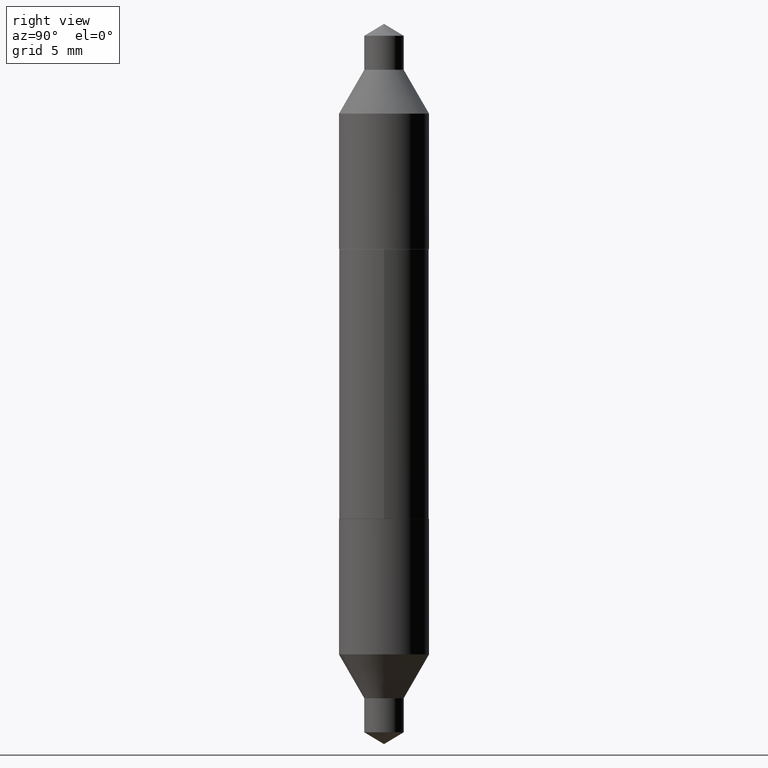
[diagram: clean part render]
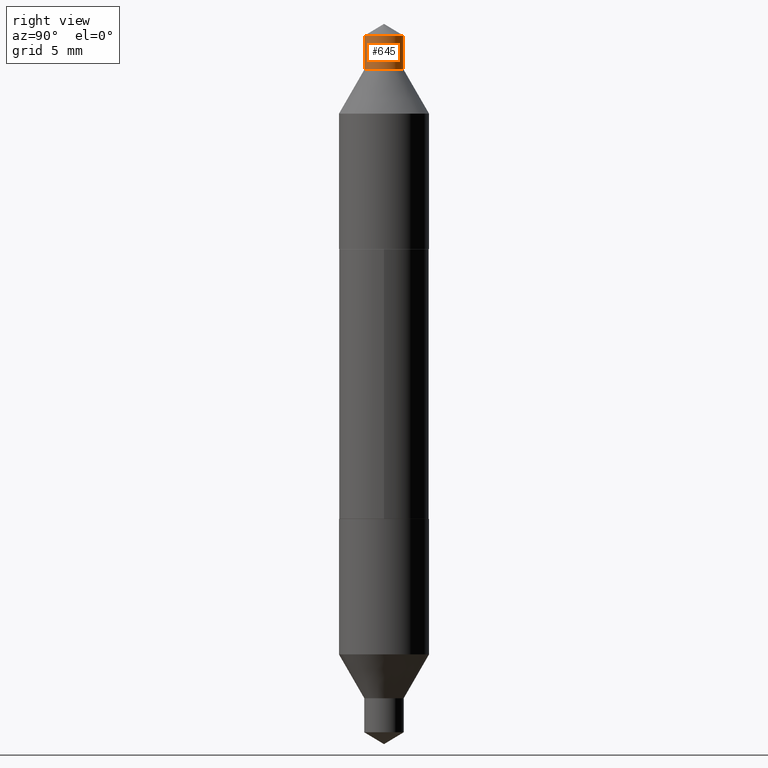
[diagram: same view with one face highlighted and labeled with its STEP entity id]
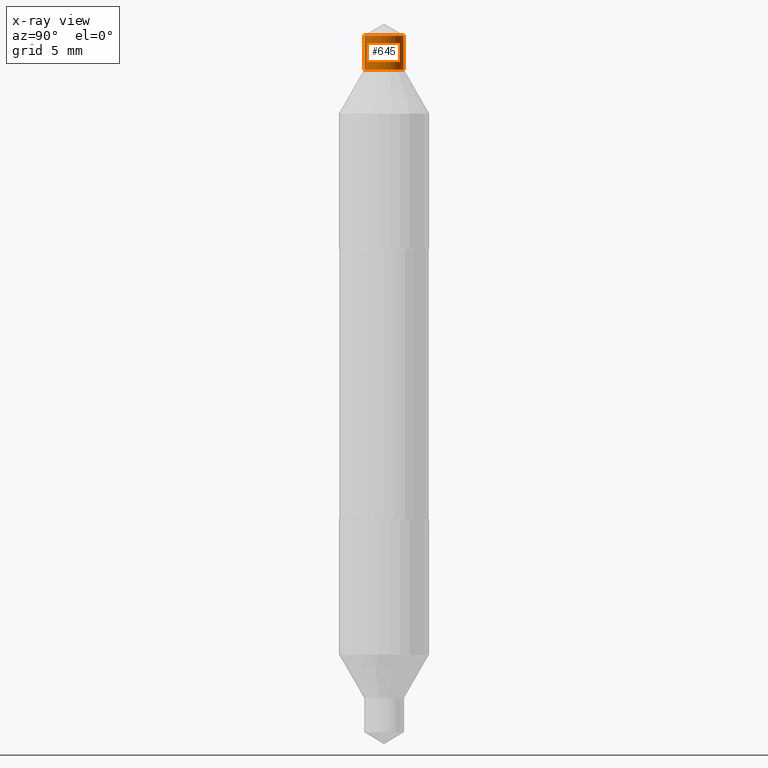
[diagram: x-ray of the same camera — body ghosted, the highlighted face saturated]
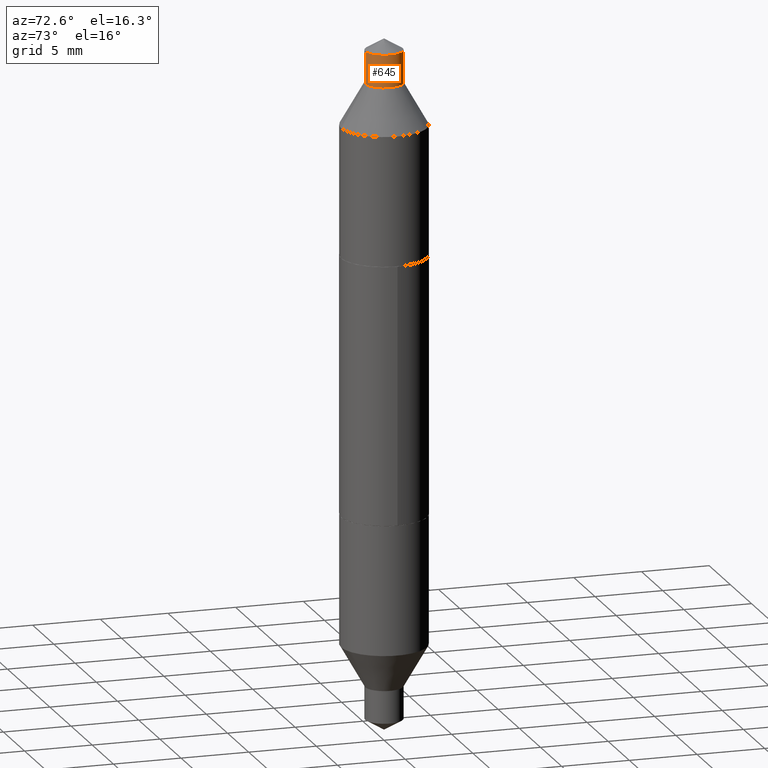
[diagram: same view with one face highlighted and labeled with its STEP entity id]
A machine part, right view. The second image highlights one B-rep face of the part: STEP entity #645.
The next image is the same camera in x-ray: the body ghosted, the highlighted face saturated — about 0% of this face is hidden behind the body in this view.
A second angle (auxiliary view) of the same face is appended — the face is thin or edge-on in the first view.
In plain terms, the highlighted cylindrical surface (edge-blend (fillet) strip) has radius 1.3894 mm, axis along (0, -0, -1).
Its self-contained STEP definition (entity closure, byte-faithful):
#5 = CARTESIAN_POINT ( 'NONE',  ( -2.129490560523995086E-29, 3.053004212445988016E-15, 0.8726000000000000423 ) ) ;
#7 = DIRECTION ( 'NONE',  ( 2.436575076777671012E-29, -3.504217665554278126E-15, -1.000000000000000000 ) ) ;
#9 = CARTESIAN_POINT ( 'NONE',  ( 3.752692404780801988E-16, 0.05470000000000304480, 0.8725999999999998202 ) ) ;
#53 = EDGE_CURVE ( 'NONE', #287, #692, #595, .T. ) ;
#62 = DIRECTION ( 'NONE',  ( 2.436575076777671012E-29, -3.504217665554278126E-15, -1.000000000000000000 ) ) ;
#90 = DIRECTION ( 'NONE',  ( 2.436575076777671012E-29, -3.504217665554278126E-15, -1.000000000000000000 ) ) ;
#99 = CARTESIAN_POINT ( 'NONE',  ( -2.359827127416466631E-29, 3.384268155191050282E-15, 0.9671329241391927178 ) ) ;
#108 = ORIENTED_EDGE ( 'NONE', *, *, #262, .F. ) ;
#120 = CARTESIAN_POINT ( 'NONE',  ( 3.752692404780935108E-16, 0.05470000000000129620, 0.3749999999999997780 ) ) ;
#127 = VERTEX_POINT ( 'NONE', #670 ) ;
#137 = CARTESIAN_POINT ( 'NONE',  ( -3.819680584694478085E-16, -0.05469999999999868717, 0.3750000000000001665 ) ) ;
#145 = ORIENTED_EDGE ( 'NONE', *, *, #53, .F. ) ;
#158 = CARTESIAN_POINT ( 'NONE',  ( 3.752692404780790648E-16, 0.05470000000000337786, 0.9671329241391926068 ) ) ;
#160 = CIRCLE ( 'NONE', #631, 0.05469999999999999168 ) ;
#180 = EDGE_CURVE ( 'NONE', #127, #320, #160, .T. ) ;
#247 = DIRECTION ( 'NONE',  ( -2.436575076777671012E-29, 3.504217665554278126E-15, 1.000000000000000000 ) ) ;
#256 = DIRECTION ( 'NONE',  ( -6.982962677686265922E-15, -1.000000000000000000, 3.745678236285553052E-15 ) ) ;
#262 = EDGE_CURVE ( 'NONE', #692, #320, #328, .T. ) ;
#283 = EDGE_LOOP ( 'NONE', ( #108, #145, #549, #325 ) ) ;
#287 = VERTEX_POINT ( 'NONE', #487 ) ;
#289 = AXIS2_PLACEMENT_3D ( 'NONE', #99, #247, #584 ) ;
#291 = VECTOR ( 'NONE', #7, 39.37007874015748143 ) ;
#302 = VECTOR ( 'NONE', #90, 39.37007874015748143 ) ;
#320 = VERTEX_POINT ( 'NONE', #9 ) ;
#325 = ORIENTED_EDGE ( 'NONE', *, *, #180, .T. ) ;
#328 = LINE ( 'NONE', #120, #291 ) ;
#421 = EDGE_CURVE ( 'NONE', #287, #127, #510, .T. ) ;
#456 = AXIS2_PLACEMENT_3D ( 'NONE', #478, #62, #256 ) ;
#478 = CARTESIAN_POINT ( 'NONE',  ( -9.170508023194260837E-30, 1.309305502066179347E-15, 0.3749999999999999445 ) ) ;
#487 = CARTESIAN_POINT ( 'NONE',  ( -3.819680584694623038E-16, -0.05469999999999661244, 0.9671329241391928289 ) ) ;
#490 = DIRECTION ( 'NONE',  ( -2.436575076777671012E-29, 3.504217665554278126E-15, 1.000000000000000000 ) ) ;
#510 = LINE ( 'NONE', #137, #302 ) ;
#527 = CYLINDRICAL_SURFACE ( 'NONE', #456, 0.05469999999999999168 ) ;
#533 = FACE_OUTER_BOUND ( 'NONE', #283, .T. ) ;
#549 = ORIENTED_EDGE ( 'NONE', *, *, #421, .T. ) ;
#581 = DIRECTION ( 'NONE',  ( -6.982962677686265922E-15, -1.000000000000000000, 2.497118824190368833E-15 ) ) ;
#584 = DIRECTION ( 'NONE',  ( -6.982962677686265922E-15, -1.000000000000000000, 2.497118824190368833E-15 ) ) ;
#595 = CIRCLE ( 'NONE', #289, 0.05469999999999999168 ) ;
#631 = AXIS2_PLACEMENT_3D ( 'NONE', #5, #490, #581 ) ;
#645 = ADVANCED_FACE ( 'NONE', ( #533 ), #527, .T. ) ;
#670 = CARTESIAN_POINT ( 'NONE',  ( -3.819680584694599372E-16, -0.05469999999999693163, 0.8726000000000001533 ) ) ;
#692 = VERTEX_POINT ( 'NONE', #158 ) ;